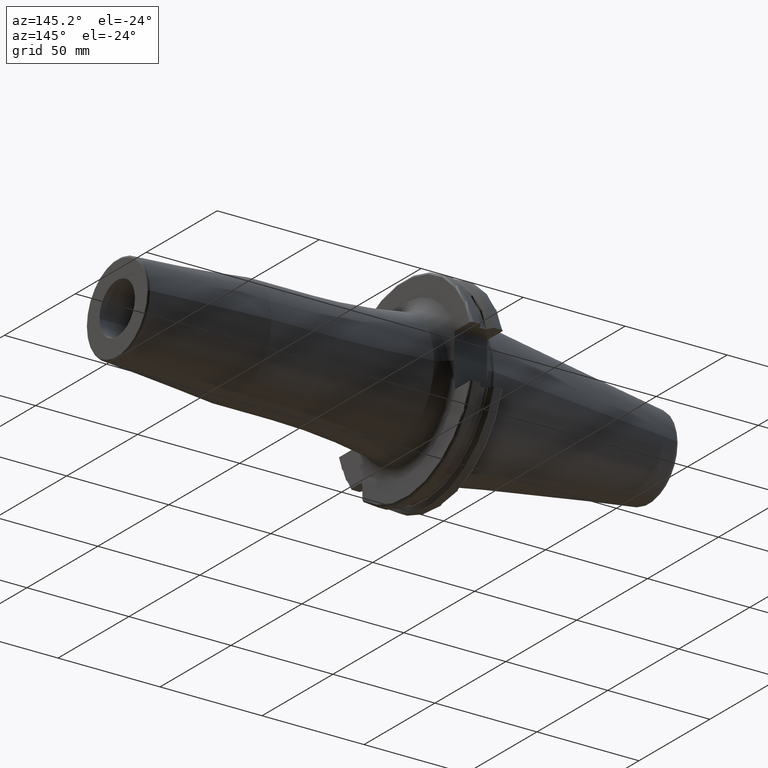
[diagram: clean part render]
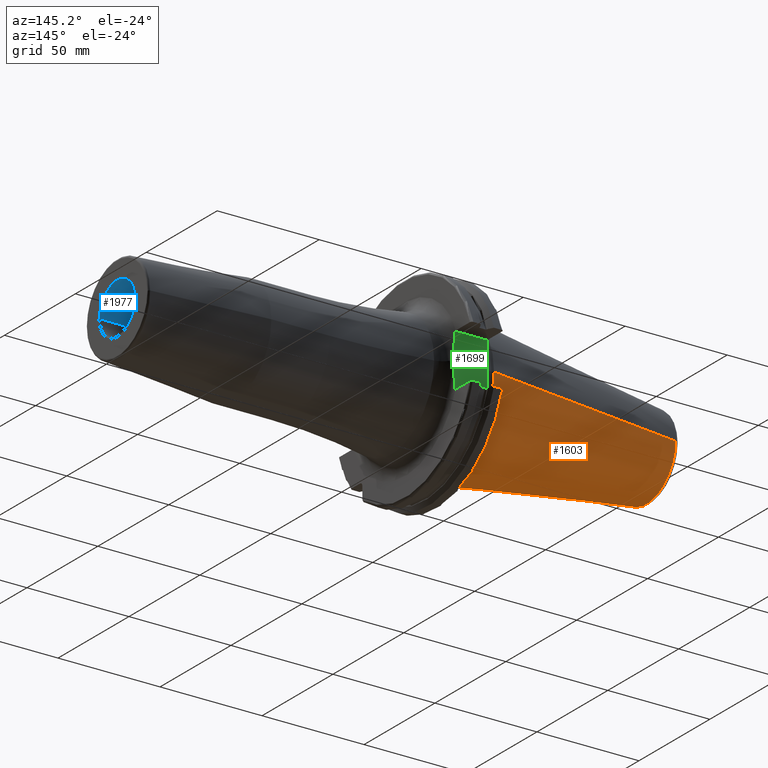
[diagram: same view with three faces highlighted in distinct colors, each labeled with its STEP entity id]
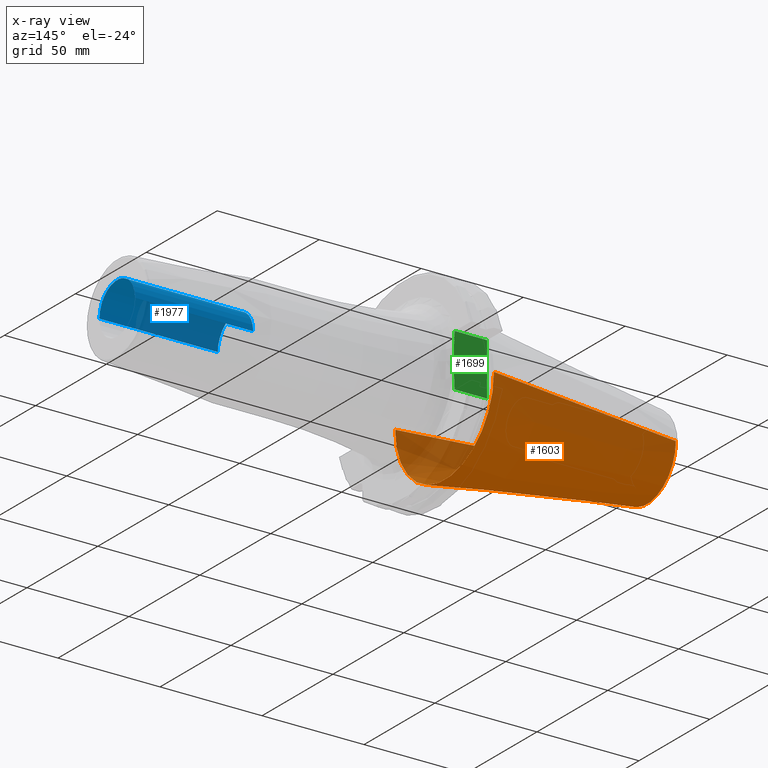
[diagram: x-ray of the same camera — body ghosted, the three highlighted faces saturated]
A machine part, auxiliary view with three faces highlighted in distinct colors.
The next image is the same camera in x-ray (body ghosted, the three faces saturated) — at least one of them is partly hidden behind the body in this view.
Their STEP definitions:

[orange] entity #1603 — the highlighted conical surface has half-angle 8.298 deg.
#32=CARTESIAN_POINT('',(-9.967471700563E1,0.E0,0.E0));
#33=DIRECTION('',(-1.E0,0.E0,0.E0));
#34=DIRECTION('',(0.E0,1.E0,0.E0));
#35=AXIS2_PLACEMENT_3D('',#32,#33,#34);
#47=DIRECTION('',(-9.895312636440E-1,-1.443186691705E-1,0.E0));
#48=VECTOR('',#47,1.002343617797E2);
#49=CARTESIAN_POINT('',(-4.896823332305E-1,3.485358204157E1,0.E0));
#50=LINE('',#49,#48);
#51=DIRECTION('',(-9.895312636440E-1,1.443186691705E-1,0.E0));
#52=VECTOR('',#51,1.002343617797E2);
#53=CARTESIAN_POINT('',(-4.896823332305E-1,-3.485358204157E1,0.E0));
#54=LINE('',#53,#52);
#55=CARTESIAN_POINT('',(-4.896823332305E-1,0.E0,0.E0));
#56=DIRECTION('',(-1.E0,0.E0,0.E0));
#57=DIRECTION('',(0.E0,1.E0,0.E0));
#58=AXIS2_PLACEMENT_3D('',#55,#56,#57);
#1269=CARTESIAN_POINT('',(-9.967471700563E1,2.038789234437E1,0.E0));
#1271=VERTEX_POINT('',#1269);
#1273=CARTESIAN_POINT('',(-9.967471700563E1,-2.038789234437E1,0.E0));
#1275=VERTEX_POINT('',#1273);
#1337=CARTESIAN_POINT('',(-4.896823332305E-1,3.485358204157E1,0.E0));
#1338=VERTEX_POINT('',#1337);
#1339=CARTESIAN_POINT('',(-4.896823332305E-1,-3.485358204157E1,0.E0));
#1340=VERTEX_POINT('',#1339);
#1591=CARTESIAN_POINT('',(-5.008219966943E1,0.E0,0.E0));
#1592=DIRECTION('',(1.E0,0.E0,0.E0));
#1593=DIRECTION('',(0.E0,-1.E0,0.E0));
#1594=AXIS2_PLACEMENT_3D('',#1591,#1592,#1593);
#1595=CONICAL_SURFACE('',#1594,2.762073719297E1,8.297826828206E0);
#1596=ORIENTED_EDGE('',*,*,#1581,.T.);
#1597=ORIENTED_EDGE('',*,*,#1558,.T.);
#1598=ORIENTED_EDGE('',*,*,#1585,.F.);
#1600=ORIENTED_EDGE('',*,*,#1599,.F.);
#1601=EDGE_LOOP('',(#1596,#1597,#1598,#1600));
#1602=FACE_OUTER_BOUND('',#1601,.F.);
#1603=ADVANCED_FACE('',(#1602),#1595,.T.);
#36=CIRCLE('',#35,2.038789234437E1);
#59=CIRCLE('',#58,3.485358204157E1);
#1558=EDGE_CURVE('',#1271,#1275,#36,.T.);
#1581=EDGE_CURVE('',#1338,#1271,#50,.T.);
#1585=EDGE_CURVE('',#1340,#1275,#54,.T.);
#1599=EDGE_CURVE('',#1338,#1340,#59,.T.);

[blue] entity #1977 — the highlighted cylindrical surface (edge-blend (fillet) strip) has radius 12.5 mm, axis along (-1, 0, 0).
#315=CARTESIAN_POINT('',(1.6E2,0.E0,0.E0));
#316=DIRECTION('',(-1.E0,0.E0,0.E0));
#317=DIRECTION('',(0.E0,-1.E0,0.E0));
#318=AXIS2_PLACEMENT_3D('',#315,#316,#317);
#325=DIRECTION('',(-1.E0,0.E0,0.E0));
#326=VECTOR('',#325,5.8E1);
#327=CARTESIAN_POINT('',(1.6E2,-1.25E1,0.E0));
#328=LINE('',#327,#326);
#329=DIRECTION('',(-1.E0,0.E0,0.E0));
#330=VECTOR('',#329,5.8E1);
#331=CARTESIAN_POINT('',(1.6E2,1.25E1,0.E0));
#332=LINE('',#331,#330);
#333=CARTESIAN_POINT('',(1.02E2,0.E0,0.E0));
#334=DIRECTION('',(-1.E0,0.E0,0.E0));
#335=DIRECTION('',(0.E0,-1.E0,0.E0));
#336=AXIS2_PLACEMENT_3D('',#333,#334,#335);
#1501=CARTESIAN_POINT('',(1.02E2,-1.25E1,0.E0));
#1502=CARTESIAN_POINT('',(1.02E2,1.25E1,0.E0));
#1503=VERTEX_POINT('',#1501);
#1504=VERTEX_POINT('',#1502);
#1505=CARTESIAN_POINT('',(1.6E2,-1.25E1,0.E0));
#1506=CARTESIAN_POINT('',(1.6E2,1.25E1,0.E0));
#1507=VERTEX_POINT('',#1505);
#1508=VERTEX_POINT('',#1506);
#1963=CARTESIAN_POINT('',(1.6E2,0.E0,0.E0));
#1964=DIRECTION('',(-1.E0,0.E0,0.E0));
#1965=DIRECTION('',(0.E0,-1.E0,0.E0));
#1966=AXIS2_PLACEMENT_3D('',#1963,#1964,#1965);
#1967=CYLINDRICAL_SURFACE('',#1966,1.25E1);
#1968=ORIENTED_EDGE('',*,*,#1956,.T.);
#1970=ORIENTED_EDGE('',*,*,#1969,.T.);
#1972=ORIENTED_EDGE('',*,*,#1971,.F.);
#1974=ORIENTED_EDGE('',*,*,#1973,.F.);
#1975=EDGE_LOOP('',(#1968,#1970,#1972,#1974));
#1976=FACE_OUTER_BOUND('',#1975,.F.);
#1977=ADVANCED_FACE('',(#1976),#1967,.F.);
#319=CIRCLE('',#318,1.25E1);
#337=CIRCLE('',#336,1.25E1);
#1956=EDGE_CURVE('',#1507,#1508,#319,.T.);
#1969=EDGE_CURVE('',#1508,#1504,#332,.T.);
#1971=EDGE_CURVE('',#1503,#1504,#337,.T.);
#1973=EDGE_CURVE('',#1507,#1503,#328,.T.);

[green] entity #1699 — the highlighted planar face has unit normal (0, -1, 0).
#96=CARTESIAN_POINT('',(3.161444226151E0,3.53E1,1.136082451233E-13));
#97=CARTESIAN_POINT('',(3.161444226151E0,3.53E1,-2.287557745853E-1));
#98=CARTESIAN_POINT('',(3.162734010751E0,3.53E1,-6.792530123044E-1));
#99=CARTESIAN_POINT('',(3.167877030309E0,3.53E1,-1.331895850106E0));
#100=CARTESIAN_POINT('',(3.175250793624E0,3.53E1,-1.967616454588E0));
#101=CARTESIAN_POINT('',(3.183670148061E0,3.53E1,-2.589717830169E0));
#102=CARTESIAN_POINT('',(3.191796133338E0,3.53E1,-3.202378106077E0));
#103=CARTESIAN_POINT('',(3.198127290791E0,3.53E1,-3.809054455619E0));
#104=CARTESIAN_POINT('',(3.2E0,3.53E1,-4.213157466434E0));
#105=CARTESIAN_POINT('',(3.2E0,3.53E1,-4.414818795828E0));
#122=DIRECTION('',(1.E0,0.E0,0.E0));
#123=VECTOR('',#122,1.588283882123E1);
#124=CARTESIAN_POINT('',(3.2E0,3.53E1,-1.29E1));
#125=LINE('',#124,#123);
#126=DIRECTION('',(-1.E0,0.E0,0.E0));
#127=VECTOR('',#126,1.588283882123E1);
#128=CARTESIAN_POINT('',(1.908283882123E1,3.53E1,1.29E1));
#129=LINE('',#128,#127);
#185=CARTESIAN_POINT('',(1.908283882123E1,3.53E1,-1.29E1));
#186=CARTESIAN_POINT('',(1.911751556559E1,3.53E1,-1.178842491575E1));
#187=CARTESIAN_POINT('',(1.923295000569E1,3.53E1,-9.585383804361E0));
#188=CARTESIAN_POINT('',(1.944105458970E1,3.53E1,-6.313792641381E0));
#189=CARTESIAN_POINT('',(1.959798947956E1,3.53E1,-3.142926720785E0));
#190=CARTESIAN_POINT('',(1.963673726404E1,3.53E1,-1.044638747363E0));
#191=CARTESIAN_POINT('',(1.963678136934E1,3.53E1,-3.686861902536E-3));
#216=CARTESIAN_POINT('',(1.908283882123E1,3.53E1,1.29E1));
#217=CARTESIAN_POINT('',(1.912203253834E1,3.53E1,1.164363178538E1));
#218=CARTESIAN_POINT('',(1.925608955812E1,3.53E1,9.215240558692E0));
#219=CARTESIAN_POINT('',(1.947529032297E1,3.53E1,5.743267701369E0));
#220=CARTESIAN_POINT('',(1.961130723162E1,3.53E1,2.668754743669E0));
#221=CARTESIAN_POINT('',(1.963681741626E1,3.53E1,8.470749321342E-1));
#222=CARTESIAN_POINT('',(1.963678136934E1,3.53E1,-3.686861902536E-3));
#627=DIRECTION('',(0.E0,0.E0,-1.E0));
#628=VECTOR('',#627,8.485181204172E0);
#629=CARTESIAN_POINT('',(3.2E0,3.53E1,-4.414818795828E0));
#630=LINE('',#629,#628);
#631=DIRECTION('',(0.E0,0.E0,-1.E0));
#632=VECTOR('',#631,8.485181204172E0);
#633=CARTESIAN_POINT('',(3.2E0,3.53E1,1.29E1));
#634=LINE('',#633,#632);
#1047=CARTESIAN_POINT('',(3.2E0,3.53E1,4.414818795828E0));
#1048=CARTESIAN_POINT('',(3.2E0,3.53E1,4.213098987331E0));
#1049=CARTESIAN_POINT('',(3.198126239348E0,3.53E1,3.808889642023E0));
#1050=CARTESIAN_POINT('',(3.191792541487E0,3.53E1,3.202078124088E0));
#1051=CARTESIAN_POINT('',(3.183664786024E0,3.53E1,2.589329618622E0));
#1052=CARTESIAN_POINT('',(3.175245424270E0,3.53E1,1.967199873297E0));
#1053=CARTESIAN_POINT('',(3.167873523896E0,3.53E1,1.331533559003E0));
#1054=CARTESIAN_POINT('',(3.162733016852E0,3.53E1,6.790196322901E-1));
#1055=CARTESIAN_POINT('',(3.161444226151E0,3.53E1,2.286685292050E-1));
#1056=CARTESIAN_POINT('',(3.161444226151E0,3.53E1,1.136082451233E-13));
#1408=CARTESIAN_POINT('',(3.2E0,3.53E1,1.29E1));
#1410=VERTEX_POINT('',#1408);
#1411=CARTESIAN_POINT('',(3.2E0,3.53E1,4.414818795828E0));
#1412=VERTEX_POINT('',#1411);
#1413=CARTESIAN_POINT('',(3.2E0,3.53E1,-4.414818795828E0));
#1414=CARTESIAN_POINT('',(3.2E0,3.53E1,-1.29E1));
#1415=VERTEX_POINT('',#1413);
#1416=VERTEX_POINT('',#1414);
#1435=VERTEX_POINT('',#1056);
#1513=VERTEX_POINT('',#216);
#1514=VERTEX_POINT('',#222);
#1515=VERTEX_POINT('',#185);
#1677=CARTESIAN_POINT('',(1.905E1,3.53E1,1.29E1));
#1678=DIRECTION('',(0.E0,-1.E0,0.E0));
#1679=DIRECTION('',(0.E0,0.E0,-1.E0));
#1680=AXIS2_PLACEMENT_3D('',#1677,#1678,#1679);
#1681=PLANE('',#1680);
#1683=ORIENTED_EDGE('',*,*,#1682,.T.);
#1685=ORIENTED_EDGE('',*,*,#1684,.T.);
#1687=ORIENTED_EDGE('',*,*,#1686,.F.);
#1689=ORIENTED_EDGE('',*,*,#1688,.T.);
#1691=ORIENTED_EDGE('',*,*,#1690,.T.);
#1693=ORIENTED_EDGE('',*,*,#1692,.T.);
#1694=ORIENTED_EDGE('',*,*,#1665,.T.);
#1696=ORIENTED_EDGE('',*,*,#1695,.T.);
#1697=EDGE_LOOP('',(#1683,#1685,#1687,#1689,#1691,#1693,#1694,#1696));
#1698=FACE_OUTER_BOUND('',#1697,.F.);
#1699=ADVANCED_FACE('',(#1698),#1681,.F.);
#106=B_SPLINE_CURVE_WITH_KNOTS('',3,(#96,#97,#98,#99,#100,#101,#102,#103,#104,
#105),.UNSPECIFIED.,.F.,.F.,(4,1,1,1,1,1,1,4),(0.E0,1.428571428571E-1,
2.857142857143E-1,4.285714285714E-1,5.714285714286E-1,7.142857142857E-1,
8.571428571429E-1,1.E0),.UNSPECIFIED.);
#192=B_SPLINE_CURVE_WITH_KNOTS('',3,(#185,#186,#187,#188,#189,#190,#191),
.UNSPECIFIED.,.F.,.F.,(4,1,1,1,4),(0.E0,2.5E-1,5.E-1,7.5E-1,1.E0),
.UNSPECIFIED.);
#223=B_SPLINE_CURVE_WITH_KNOTS('',3,(#216,#217,#218,#219,#220,#221,#222),
.UNSPECIFIED.,.F.,.F.,(4,1,1,1,4),(0.E0,2.5E-1,5.E-1,7.5E-1,1.E0),
.UNSPECIFIED.);
#1057=B_SPLINE_CURVE_WITH_KNOTS('',3,(#1047,#1048,#1049,#1050,#1051,#1052,#1053,
#1054,#1055,#1056),.UNSPECIFIED.,.F.,.F.,(4,1,1,1,1,1,1,4),(0.E0,
1.428571428571E-1,2.857142857143E-1,4.285714285714E-1,5.714285714286E-1,
7.142857142857E-1,8.571428571429E-1,1.E0),.UNSPECIFIED.);
#1665=EDGE_CURVE('',#1435,#1415,#106,.T.);
#1682=EDGE_CURVE('',#1416,#1515,#125,.T.);
#1684=EDGE_CURVE('',#1515,#1514,#192,.T.);
#1686=EDGE_CURVE('',#1513,#1514,#223,.T.);
#1688=EDGE_CURVE('',#1513,#1410,#129,.T.);
#1690=EDGE_CURVE('',#1410,#1412,#634,.T.);
#1692=EDGE_CURVE('',#1412,#1435,#1057,.T.);
#1695=EDGE_CURVE('',#1415,#1416,#630,.T.);